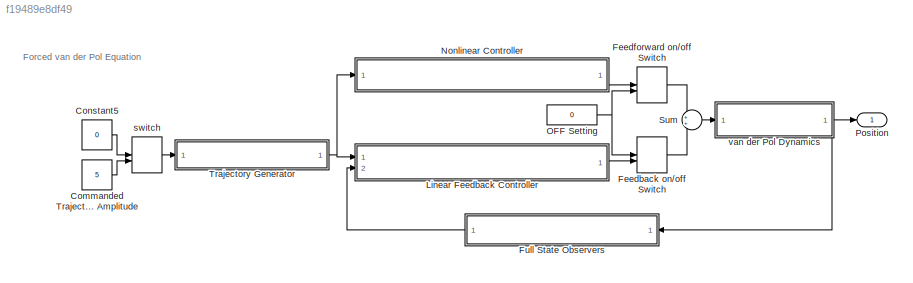
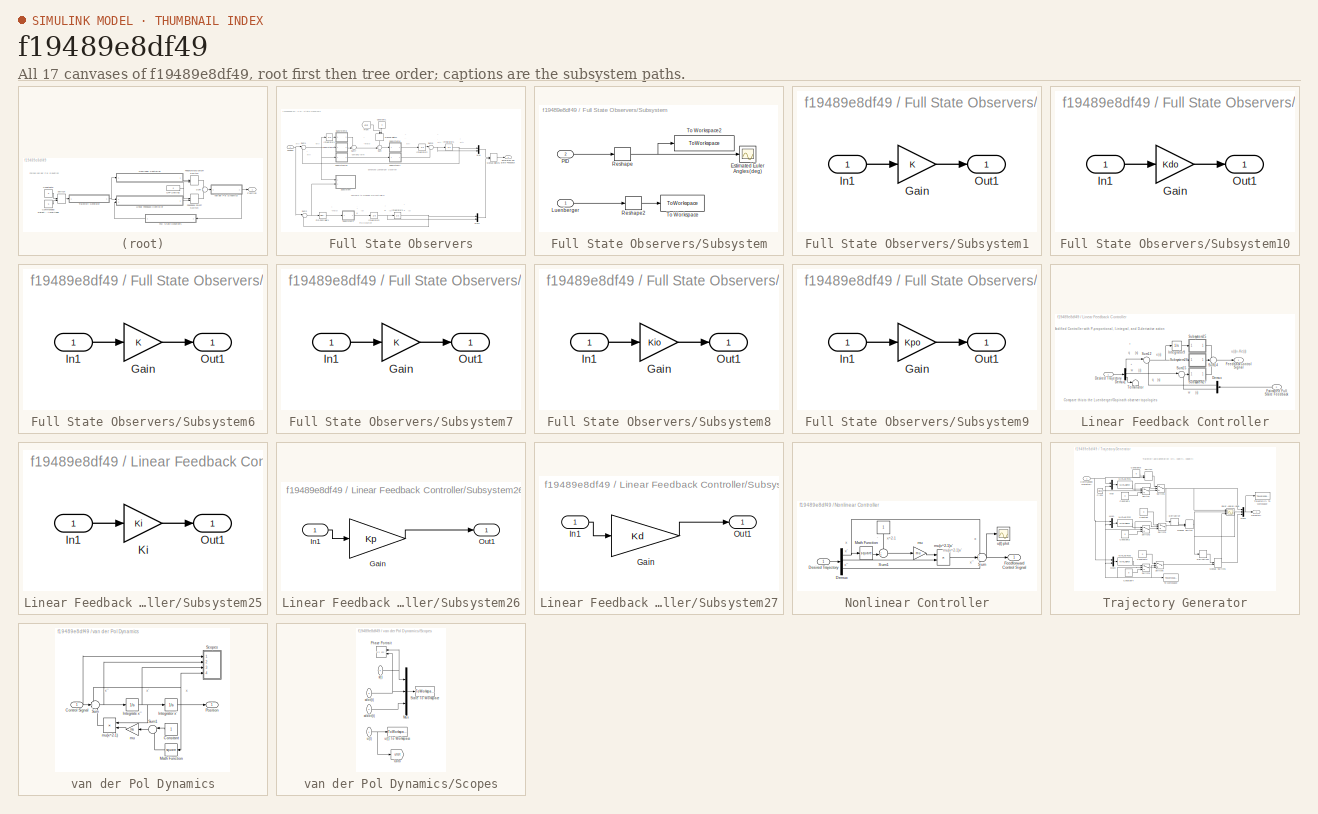
[diagram: thumbnail index - all 17 canvases of the model, root first then tree order]
MODEL slx_f19489e8df49
KIND model
CONFIG AbsTol = auto
CONFIG FixedStep = 0.01
CONFIG InitFcn = clear all; close all; clc;\nmu=1;\nx0=1;\nxdot0=0;\nStartTime=0;\nEndTime=26.7;\n\n% Design LQR for NO feedforward\nA=[1 -1;1 0]; B=[-1;0]; C=[0 1]; D=[0]; Q=[1 0;0 1];  R=[1]\n[K,S,E] = lqr(A,B,Q,R)\n\nKp=K(1);  Kd=K(2);  Ki=Kp*0.1;\nKpo=1;  Kdo=Kpo*1;  Kio=Kpo*0;
CONFIG MaxStep = auto
CONFIG MinStep = auto
CONFIG RelTol = 1e-3
CONFIG SampleTimeConstraint = Unconstrained
CONFIG Solver = ode4
CONFIG SolverMode = Auto
CONFIG SolverName = ode4
CONFIG StartTime = 0.0
CONFIG StopFcn = figure(1);\nsubplot(3,1,1); plot(t,Trajectory(:,1),'--r','linewidth',3); grid; ylabel('x(t)','fontsize',16); title('Position, Rate, Acceleration Trajectories','fontsize',16);   \nhold on; plot(t,State(:,1),'linewidth',2); hold off; legend('Desired', 'Actual');\nsubplot(3,1,2); plot(t,Trajectory(:,2),'--r','linewidth',3);  grid; ylabel('xdot(t)','fontsize',16);\nhold on; plot(t,State(:,2),'linewidth',2...<+1848ch>
CONFIG StopTime = 30
BLOCK [ManualSwitch]  switch
  CurrentSetting = 0
BLOCK [Constant] Commanded Trajectory Amplitude
  Value = 5
BLOCK [Constant] Constant5
  Value = 0
BLOCK [ManualSwitch] Feedback on//off Switch
  CurrentSetting = 0
BLOCK [ManualSwitch] Feedforward on//off Switch
  CurrentSetting = 0
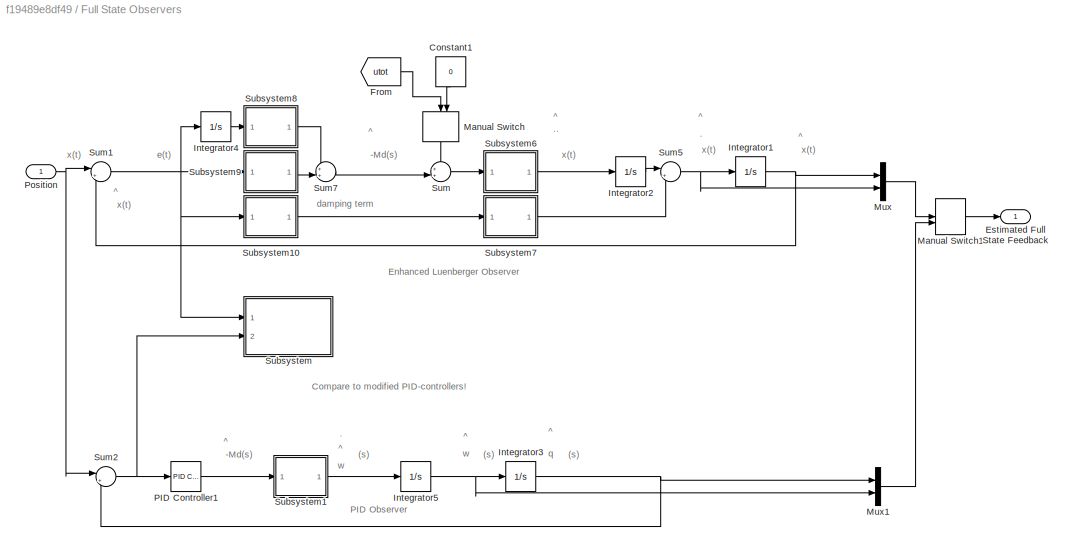
BLOCK [SubSystem] Full State Observers
  Ports = [1, 1]
  RequestExecContextInheritance = off
  Variant = off
BLOCK [Constant] Full State Observers/Constant1
  Value = 0
BLOCK [Outport] Full State Observers/Estimated Full State Feedback
  IconDisplay = Port number
BLOCK [From] Full State Observers/From
  GotoTag = utot
  TagVisibility = global
BLOCK [Integrator] Full State Observers/Integrator1
  Ports = [1, 1]
BLOCK [Integrator] Full State Observers/Integrator2
  Ports = [1, 1]
BLOCK [Integrator] Full State Observers/Integrator3
  Ports = [1, 1]
BLOCK [Integrator] Full State Observers/Integrator4
  Ports = [1, 1]
BLOCK [Integrator] Full State Observers/Integrator5
  Ports = [1, 1]
BLOCK [ManualSwitch] Full State Observers/Manual Switch
  CurrentSetting = 0
BLOCK [ManualSwitch] Full State Observers/Manual Switch1
BLOCK [Mux] Full State Observers/Mux
  DisplayOption = bar
  Inputs = 2
  Ports = [2, 1]
BLOCK [Mux] Full State Observers/Mux1
  DisplayOption = bar
  Inputs = 2
  Ports = [2, 1]
BLOCK [Reference] Full State Observers/PID Controller1  REF=simulink_need_slupdate/PID Controller
  Ports = [1, 1]
  SourceBlock = simulink_need_slupdate/PID Controller
  SourceType = PID Controller
BLOCK [Inport] Full State Observers/Position
  IconDisplay = Port number
BLOCK [SubSystem] Full State Observers/Subsystem
  Ports = [2]
  RequestExecContextInheritance = off
  Variant = off
BLOCK [Scope] Full State Observers/Subsystem/Estimated Euler Angles (deg)
  Ports = [1]
  ScopeSpecificationString = C++SS(StrPVP('Location','[263, 266, 767, 592]'),StrPVP('Open','off'),StrPVP('ZoomMode','xonly'),MxPVP('AxesTitles',24,'struct(''axes1'',''Euler Angles'')'),StrPVP('TimeRange','25'),StrPVP('YMax','35'),StrPVP('SaveName','ScopeData13'),StrPVP('DataFormat','StructureWithTime'),StrPVP('BlockParamSampleTime','0'),StrPVP('LimitDataPoints','on'),StrPVP('Decimation','1'),StrPVP('BlockParamSampleInput','of...<+4ch>
  StopFcn = %Simulink figure properties\nshh=get(0,'ShowHiddenHandles');\nset(0,'ShowHiddenHandles','On')\nset(gcf,'menubar','figure')\nset(gcf,'CloseRequestFcn','closereq')\nset(gcf,'DefaultLineClipping','Off')\nset(0,'ShowHiddenHandles',shh)
BLOCK [Inport] Full State Observers/Subsystem/Luenberger
  IconDisplay = Port number
BLOCK [Inport] Full State Observers/Subsystem/PID
  IconDisplay = Port number
  Port = 2
BLOCK [Reshape] Full State Observers/Subsystem/Reshape
  Ports = [1, 1]
BLOCK [Reshape] Full State Observers/Subsystem/Reshape2
  OutputDimensions = [1,9]
  Ports = [1, 1]
BLOCK [ToWorkspace] Full State Observers/Subsystem/To Workspace
  MaxDataPoints = inf
  Ports = [1]
  SampleTime = -1
  VariableName = LuenbergerEstimationError
BLOCK [ToWorkspace] Full State Observers/Subsystem/To Workspace2
  MaxDataPoints = inf
  Ports = [1]
  SampleTime = -1
  VariableName = PIDoEstimationError
BLOCK [SubSystem] Full State Observers/Subsystem1
  Ports = [1, 1]
  RequestExecContextInheritance = off
  Variant = off
BLOCK [Gain] Full State Observers/Subsystem1/Gain
  Multiplication = Matrix(K*u)
  OutDataTypeStr = Inherit: Inherit via internal rule
  ParamDataTypeStr = Inherit: Inherit via internal rule
  SaturateOnIntegerOverflow = off
BLOCK [Inport] Full State Observers/Subsystem1/In1
  IconDisplay = Port number
BLOCK [Outport] Full State Observers/Subsystem1/Out1
  IconDisplay = Port number
BLOCK [SubSystem] Full State Observers/Subsystem10
  Ports = [1, 1]
  RequestExecContextInheritance = off
  Variant = off
BLOCK [Gain] Full State Observers/Subsystem10/Gain
  Gain = Kdo
  OutDataTypeStr = Inherit: Inherit via internal rule
  ParamDataTypeStr = Inherit: Inherit via internal rule
  SaturateOnIntegerOverflow = off
BLOCK [Inport] Full State Observers/Subsystem10/In1
  IconDisplay = Port number
BLOCK [Outport] Full State Observers/Subsystem10/Out1
  IconDisplay = Port number
BLOCK [SubSystem] Full State Observers/Subsystem6
  Ports = [1, 1]
  RequestExecContextInheritance = off
  Variant = off
BLOCK [Gain] Full State Observers/Subsystem6/Gain
  Multiplication = Matrix(K*u)
  OutDataTypeStr = Inherit: Inherit via internal rule
  ParamDataTypeStr = Inherit: Inherit via internal rule
  SaturateOnIntegerOverflow = off
BLOCK [Inport] Full State Observers/Subsystem6/In1
  IconDisplay = Port number
BLOCK [Outport] Full State Observers/Subsystem6/Out1
  IconDisplay = Port number
BLOCK [SubSystem] Full State Observers/Subsystem7
  Ports = [1, 1]
  RequestExecContextInheritance = off
  Variant = off
BLOCK [Gain] Full State Observers/Subsystem7/Gain
  Multiplication = Matrix(K*u)
  OutDataTypeStr = Inherit: Inherit via internal rule
  ParamDataTypeStr = Inherit: Inherit via internal rule
  SaturateOnIntegerOverflow = off
BLOCK [Inport] Full State Observers/Subsystem7/In1
  IconDisplay = Port number
BLOCK [Outport] Full State Observers/Subsystem7/Out1
  IconDisplay = Port number
BLOCK [SubSystem] Full State Observers/Subsystem8
  Ports = [1, 1]
  RequestExecContextInheritance = off
  Variant = off
BLOCK [Gain] Full State Observers/Subsystem8/Gain
  Gain = Kio
  OutDataTypeStr = Inherit: Inherit via internal rule
  ParamDataTypeStr = Inherit: Inherit via internal rule
  SaturateOnIntegerOverflow = off
BLOCK [Inport] Full State Observers/Subsystem8/In1
  IconDisplay = Port number
BLOCK [Outport] Full State Observers/Subsystem8/Out1
  IconDisplay = Port number
BLOCK [SubSystem] Full State Observers/Subsystem9
  Ports = [1, 1]
  RequestExecContextInheritance = off
  Variant = off
BLOCK [Gain] Full State Observers/Subsystem9/Gain
  Gain = Kpo
  OutDataTypeStr = Inherit: Inherit via internal rule
  ParamDataTypeStr = Inherit: Inherit via internal rule
  SaturateOnIntegerOverflow = off
BLOCK [Inport] Full State Observers/Subsystem9/In1
  IconDisplay = Port number
BLOCK [Outport] Full State Observers/Subsystem9/Out1
  IconDisplay = Port number
BLOCK [Sum] Full State Observers/Sum
  IconShape = round
  InputSameDT = off
  Inputs = ++|
  OutDataTypeStr = Inherit: Inherit via internal rule
  Ports = [2, 1]
  SaturateOnIntegerOverflow = off
BLOCK [Sum] Full State Observers/Sum1
  IconShape = round
  InputSameDT = off
  Inputs = |+-
  OutDataTypeStr = Inherit: Inherit via internal rule
  Ports = [2, 1]
  SaturateOnIntegerOverflow = off
BLOCK [Sum] Full State Observers/Sum2
  IconShape = round
  InputSameDT = off
  Inputs = |+-
  OutDataTypeStr = Inherit: Inherit via internal rule
  Ports = [2, 1]
  SaturateOnIntegerOverflow = off
BLOCK [Sum] Full State Observers/Sum5
  IconShape = round
  InputSameDT = off
  Inputs = |++
  OutDataTypeStr = Inherit: Inherit via internal rule
  Ports = [2, 1]
  SaturateOnIntegerOverflow = off
BLOCK [Sum] Full State Observers/Sum7
  IconShape = round
  InputSameDT = off
  Inputs = ++|
  OutDataTypeStr = Inherit: Inherit via internal rule
  Ports = [2, 1]
  SaturateOnIntegerOverflow = off
BLOCK [SubSystem] Linear Feedback Controller
  Ports = [2, 1]
  RequestExecContextInheritance = off
  Variant = off
BLOCK [Demux] Linear Feedback Controller/Demux
  DisplayOption = bar
  Outputs = 2
  Ports = [1, 2]
BLOCK [Demux] Linear Feedback Controller/Demux1
  DisplayOption = bar
  Outputs = 3
  Ports = [1, 3]
BLOCK [Inport] Linear Feedback Controller/Desired Trajectory
  IconDisplay = Port number
BLOCK [Inport] Linear Feedback Controller/Estimated Full State Feedback
  IconDisplay = Port number
  Port = 2
BLOCK [Outport] Linear Feedback Controller/Feedback Control Signal
  IconDisplay = Port number
BLOCK [Integrator] Linear Feedback Controller/Integrator9
  Ports = [1, 1]
BLOCK [SubSystem] Linear Feedback Controller/Subsystem25
  Ports = [1, 1]
  RequestExecContextInheritance = off
  Variant = off
BLOCK [Inport] Linear Feedback Controller/Subsystem25/In1
  IconDisplay = Port number
BLOCK [Gain] Linear Feedback Controller/Subsystem25/Ki
  Gain = Ki
  OutDataTypeStr = Inherit: Inherit via internal rule
  ParamDataTypeStr = Inherit: Inherit via internal rule
  SaturateOnIntegerOverflow = off
BLOCK [Outport] Linear Feedback Controller/Subsystem25/Out1
  IconDisplay = Port number
BLOCK [SubSystem] Linear Feedback Controller/Subsystem26
  Ports = [1, 1]
  RequestExecContextInheritance = off
  Variant = off
BLOCK [Gain] Linear Feedback Controller/Subsystem26/Gain
  Gain = Kp
  OutDataTypeStr = Inherit: Inherit via internal rule
  ParamDataTypeStr = Inherit: Inherit via internal rule
  SaturateOnIntegerOverflow = off
BLOCK [Inport] Linear Feedback Controller/Subsystem26/In1
  IconDisplay = Port number
BLOCK [Outport] Linear Feedback Controller/Subsystem26/Out1
  IconDisplay = Port number
BLOCK [SubSystem] Linear Feedback Controller/Subsystem27
  Ports = [1, 1]
  RequestExecContextInheritance = off
  Variant = off
BLOCK [Gain] Linear Feedback Controller/Subsystem27/Gain
  Gain = Kd
  OutDataTypeStr = Inherit: Inherit via internal rule
  ParamDataTypeStr = Inherit: Inherit via internal rule
  SaturateOnIntegerOverflow = off
BLOCK [Inport] Linear Feedback Controller/Subsystem27/In1
  IconDisplay = Port number
BLOCK [Outport] Linear Feedback Controller/Subsystem27/Out1
  IconDisplay = Port number
BLOCK [Sum] Linear Feedback Controller/Sum12
  IconShape = round
  InputSameDT = off
  Inputs = |+-
  OutDataTypeStr = Inherit: Inherit via internal rule
  Ports = [2, 1]
  SaturateOnIntegerOverflow = off
BLOCK [Sum] Linear Feedback Controller/Sum14
  IconShape = round
  InputSameDT = off
  Inputs = ---
  OutDataTypeStr = Inherit: Inherit via internal rule
  Ports = [3, 1]
  SaturateOnIntegerOverflow = off
BLOCK [Sum] Linear Feedback Controller/Sum15
  IconShape = round
  InputSameDT = off
  Inputs = |+-
  OutDataTypeStr = Inherit: Inherit via internal rule
  Ports = [2, 1]
  SaturateOnIntegerOverflow = off
BLOCK [Terminator] Linear Feedback Controller/Terminator
BLOCK [SubSystem] Nonlinear Controller
  Ports = [1, 1]
  RequestExecContextInheritance = off
  Variant = off
BLOCK [Constant] Nonlinear Controller/.
BLOCK [Demux] Nonlinear Controller/Demux
  DisplayOption = bar
  Outputs = 3
  Ports = [1, 3]
BLOCK [Inport] Nonlinear Controller/Desired Trajectory
  IconDisplay = Port number
BLOCK [Outport] Nonlinear Controller/Feedforward Control Signal
  IconDisplay = Port number
BLOCK [Math] Nonlinear Controller/Math Function
  Operator = square
  Ports = [1, 1]
BLOCK [Sum] Nonlinear Controller/Sum
  IconShape = round
  InputSameDT = off
  Inputs = +++
  OutDataTypeStr = Inherit: Inherit via internal rule
  Ports = [3, 1]
  SaturateOnIntegerOverflow = off
BLOCK [Sum] Nonlinear Controller/Sum1
  IconShape = round
  InputSameDT = off
  Inputs = -+|
  OutDataTypeStr = Inherit: Inherit via internal rule
  Ports = [2, 1]
  SaturateOnIntegerOverflow = off
BLOCK [Gain] Nonlinear Controller/mu
  Gain = mu
  OutDataTypeStr = Inherit: Inherit via internal rule
  ParamDataTypeStr = Inherit: Inherit via internal rule
  SaturateOnIntegerOverflow = off
BLOCK [Product] Nonlinear Controller/mu(x^2-1)x'
  InputSameDT = off
  OutDataTypeStr = Inherit: Inherit via internal rule
  Ports = [2, 1]
  RndMeth = Floor
  SaturateOnIntegerOverflow = off
BLOCK [Scope] Nonlinear Controller/u(t) plot
  Ports = [1]
  ScopeSpecificationString = Simulink.scopes.TimeScopeBlockCfg('CurrentConfiguration', extmgr.ConfigurationSet(extmgr.Configuration('Core','General UI',true),extmgr.Configuration('Core','Source UI',true),extmgr.Configuration('Sources','WiredSimulink',true,'DataLoggingVariableName','ScopeData1','DataLoggingSaveFormat','StructureWithTime','DataLoggingLimitDataPoints',true,'DataLoggingDecimation','1','DataLoggingDecimateData',tr...<+1700ch>
BLOCK [Constant] OFF Setting
  Value = 0
BLOCK [Outport] Position
  IconDisplay = Port number
BLOCK [Sum] Sum
  IconShape = round
  InputSameDT = off
  OutDataTypeStr = Inherit: Inherit via internal rule
  Ports = [2, 1]
  SaturateOnIntegerOverflow = off
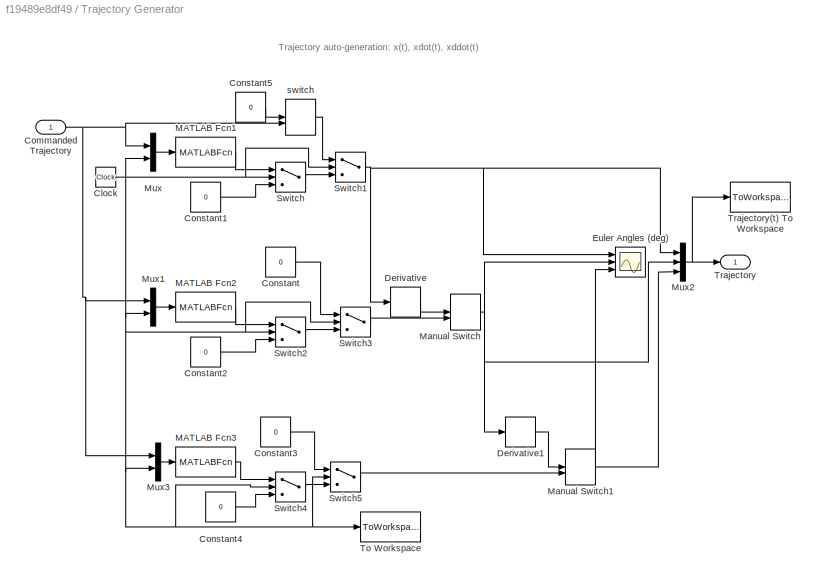
BLOCK [SubSystem] Trajectory Generator
  Ports = [1, 1]
  RequestExecContextInheritance = off
  Variant = off
BLOCK [ManualSwitch] Trajectory Generator/ switch
  CurrentSetting = 0
BLOCK [Clock] Trajectory Generator/Clock
BLOCK [Inport] Trajectory Generator/Commanded Trajectory
  IconDisplay = Port number
BLOCK [Constant] Trajectory Generator/Constant
  Value = 0
BLOCK [Constant] Trajectory Generator/Constant1
  Value = 0
BLOCK [Constant] Trajectory Generator/Constant2
  Value = 0
BLOCK [Constant] Trajectory Generator/Constant3
  Value = 0
BLOCK [Constant] Trajectory Generator/Constant4
  Value = 0
BLOCK [Constant] Trajectory Generator/Constant5
  Value = 0
BLOCK [Derivative] Trajectory Generator/Derivative
BLOCK [Derivative] Trajectory Generator/Derivative1
BLOCK [Scope] Trajectory Generator/Euler Angles (deg)
  NumInputPorts = 3
  Ports = [3]
  ScopeSpecificationString = C++SS(StrPVP('Location','[901, 205, 1435, 842]'),StrPVP('Open','off'),StrPVP('ZoomMode','xonly'),MxPVP('AxesTitles',24,'struct(''axes1'',''COMMANDED TRAJECTORY'',''axes2'',''%<SignalLabel>'',''axes3'',''%<SignalLabel>'')'),MxPVP('ScopeGraphics',28,'struct(''FigureColor'',''[0.5 0.5 0.5]'',''AxesColor'',''[0 0 0]'',''AxesTickColor'',''[1 1 1]'',''LineColors'',''[1 1 0;1 0 1;0 1 1;1 0 0;0 1 0;0 0 1]...<+409ch>
  StopFcn = %Simulink figure properties\nshh=get(0,'ShowHiddenHandles');\nset(0,'ShowHiddenHandles','On')\nset(gcf,'menubar','figure')\nset(gcf,'CloseRequestFcn','closereq')\nset(gcf,'DefaultLineClipping','Off')\nset(0,'ShowHiddenHandles',shh)
BLOCK [MATLABFcn] Trajectory Generator/MATLAB Fcn1
  MATLABFcn = u(1) * sin( u(2) )
  Ports = [1, 1]
BLOCK [MATLABFcn] Trajectory Generator/MATLAB Fcn2
  MATLABFcn = u(1) * cos( u(2) )
  Ports = [1, 1]
BLOCK [MATLABFcn] Trajectory Generator/MATLAB Fcn3
  MATLABFcn = -u(1) * sin( u(2) )
  Ports = [1, 1]
BLOCK [ManualSwitch] Trajectory Generator/Manual Switch
  CurrentSetting = 0
BLOCK [ManualSwitch] Trajectory Generator/Manual Switch1
  CurrentSetting = 0
BLOCK [Mux] Trajectory Generator/Mux
  DisplayOption = bar
  Inputs = 2
  Ports = [2, 1]
BLOCK [Mux] Trajectory Generator/Mux1
  DisplayOption = bar
  Inputs = 2
  Ports = [2, 1]
BLOCK [Mux] Trajectory Generator/Mux2
  DisplayOption = bar
  Inputs = 3
  Ports = [3, 1]
BLOCK [Mux] Trajectory Generator/Mux3
  DisplayOption = bar
  Inputs = 2
  Ports = [2, 1]
BLOCK [Switch] Trajectory Generator/Switch
  InputSameDT = off
  SaturateOnIntegerOverflow = off
  Threshold = StartTime
BLOCK [Switch] Trajectory Generator/Switch1
  InputSameDT = off
  SaturateOnIntegerOverflow = off
  Threshold = EndTime
BLOCK [Switch] Trajectory Generator/Switch2
  InputSameDT = off
  SaturateOnIntegerOverflow = off
  Threshold = StartTime
BLOCK [Switch] Trajectory Generator/Switch3
  InputSameDT = off
  SaturateOnIntegerOverflow = off
  Threshold = EndTime
BLOCK [Switch] Trajectory Generator/Switch4
  InputSameDT = off
  SaturateOnIntegerOverflow = off
  Threshold = StartTime
BLOCK [Switch] Trajectory Generator/Switch5
  InputSameDT = off
  SaturateOnIntegerOverflow = off
  Threshold = EndTime
BLOCK [ToWorkspace] Trajectory Generator/To Workspace
  MaxDataPoints = inf
  Ports = [1]
  SampleTime = -1
  VariableName = t
BLOCK [Outport] Trajectory Generator/Trajectory
  IconDisplay = Port number
BLOCK [ToWorkspace] Trajectory Generator/Trajectory(t) To Workspace
  MaxDataPoints = inf
  Ports = [1]
  SampleTime = -1
  VariableName = Trajectory
BLOCK [SubSystem] van der Pol Dynamics
  Ports = [1, 1]
  RequestExecContextInheritance = off
  Variant = off
BLOCK [Constant] van der Pol Dynamics/Constant
BLOCK [Inport] van der Pol Dynamics/Control Signal
  IconDisplay = Port number
BLOCK [Integrator] van der Pol Dynamics/Integrate x''
  InitialCondition = xdot0
  Ports = [1, 1]
BLOCK [Integrator] van der Pol Dynamics/Integrator x'
  InitialCondition = x0
  Ports = [1, 1]
BLOCK [Math] van der Pol Dynamics/Math Function
  Operator = square
  Ports = [1, 1]
BLOCK [Outport] van der Pol Dynamics/Position
  IconDisplay = Port number
BLOCK [SubSystem] van der Pol Dynamics/Scopes
  Ports = [4]
  RequestExecContextInheritance = off
  Variant = off
BLOCK [Goto] van der Pol Dynamics/Scopes/Goto
  GotoTag = utot
  TagVisibility = global
BLOCK [Mux] van der Pol Dynamics/Scopes/Mux
  DisplayOption = bar
  Inputs = 3
  Ports = [3, 1]
BLOCK [Reference] van der Pol Dynamics/Scopes/Phase Portrait  REF=simulink/Sinks/XY Graph
  Ports = [2]
  SourceBlock = simulink/Sinks/XY Graph
  SourceType = XY scope.
BLOCK [ToWorkspace] van der Pol Dynamics/Scopes/State To Workspace
  MaxDataPoints = inf
  Ports = [1]
  SampleTime = -1
  VariableName = State
BLOCK [Inport] van der Pol Dynamics/Scopes/u(t)
  IconDisplay = Port number
BLOCK [ToWorkspace] van der Pol Dynamics/Scopes/u(t) To Workspace
  MaxDataPoints = inf
  Ports = [1]
  SampleTime = -1
  VariableName = u
BLOCK [Inport] van der Pol Dynamics/Scopes/x(t)
  IconDisplay = Port number
  Port = 4
BLOCK [Inport] van der Pol Dynamics/Scopes/xddot(t)
  IconDisplay = Port number
  Port = 2
BLOCK [Inport] van der Pol Dynamics/Scopes/xdot(t)
  IconDisplay = Port number
  Port = 3
BLOCK [Sum] van der Pol Dynamics/Sum
  IconShape = round
  InputSameDT = off
  Inputs = -+-
  OutDataTypeStr = Inherit: Inherit via internal rule
  Ports = [3, 1]
  SaturateOnIntegerOverflow = off
BLOCK [Sum] van der Pol Dynamics/Sum1
  IconShape = round
  InputSameDT = off
  Inputs = |-+
  OutDataTypeStr = Inherit: Inherit via internal rule
  Ports = [2, 1]
  SaturateOnIntegerOverflow = off
BLOCK [Gain] van der Pol Dynamics/mu
  Gain = mu
  OutDataTypeStr = Inherit: Inherit via internal rule
  ParamDataTypeStr = Inherit: Inherit via internal rule
  SaturateOnIntegerOverflow = off
BLOCK [Product] van der Pol Dynamics/mu(x^2-1)
  InputSameDT = off
  OutDataTypeStr = Inherit: Inherit via internal rule
  Ports = [2, 1]
  RndMeth = Floor
  SaturateOnIntegerOverflow = off
ANNOTATION (root): Forced van der Pol Equation
ANNOTATION Full State Observers: (s)
ANNOTATION Full State Observers: -Md(s)
ANNOTATION Full State Observers: .
ANNOTATION Full State Observers: ..
ANNOTATION Full State Observers: Compare to modified PID-controllers!
ANNOTATION Full State Observers: Enhanced Luenberger Observer
ANNOTATION Full State Observers: PID Observer
ANNOTATION Full State Observers: ^
ANNOTATION Full State Observers: damping term
ANNOTATION Full State Observers: e(t)
ANNOTATION Full State Observers: q
ANNOTATION Full State Observers: w
ANNOTATION Full State Observers: x(t)
ANNOTATION Linear Feedback Controller: (s)
ANNOTATION Linear Feedback Controller: *
ANNOTATION Linear Feedback Controller: Compare this to the Luenberger/Gopinath observer topologies
ANNOTATION Linear Feedback Controller: Modified Controller with P-proportional, I-integral, and D-derivative action
ANNOTATION Linear Feedback Controller: e(s)
ANNOTATION Linear Feedback Controller: q
ANNOTATION Linear Feedback Controller: u(s)=-Ke(s)
ANNOTATION Linear Feedback Controller: w
ANNOTATION Nonlinear Controller: mu(x^2-1)x'
ANNOTATION Nonlinear Controller: x
ANNOTATION Nonlinear Controller: x'
ANNOTATION Nonlinear Controller: x''
ANNOTATION Nonlinear Controller: x^2-1
ANNOTATION Trajectory Generator: Trajectory auto-generation: x(t), xdot(t), xddot(t)
ANNOTATION van der Pol Dynamics: x
ANNOTATION van der Pol Dynamics: x'
ANNOTATION van der Pol Dynamics: x''
LINE  switch:1 -> Trajectory Generator:1
LINE Commanded Trajectory Amplitude:1 ->  switch:2
LINE Constant5:1 ->  switch:1
LINE Feedback on//off Switch:1 -> Sum:2
LINE Feedforward on//off Switch:1 -> Sum:1
LINE Full State Observers/Constant1:1 -> Full State Observers/Manual Switch:2
LINE Full State Observers/From:1 -> Full State Observers/Manual Switch:1
NET Full State Observers/Integrator1:1 -> Full State Observers/Mux:1, Full State Observers/Sum1:2
LINE Full State Observers/Integrator2:1 -> Full State Observers/Sum5:1
NET Full State Observers/Integrator3:1 -> Full State Observers/Mux1:1, Full State Observers/Sum2:2
LINE Full State Observers/Integrator4:1 -> Full State Observers/Subsystem8:1
NET Full State Observers/Integrator5:1 -> Full State Observers/Integrator3:1, Full State Observers/Mux1:2
LINE Full State Observers/Manual Switch1:1 -> Full State Observers/Estimated Full State Feedback:1
LINE Full State Observers/Manual Switch:1 -> Full State Observers/Sum:1
LINE Full State Observers/Mux1:1 -> Full State Observers/Manual Switch1:2
LINE Full State Observers/Mux:1 -> Full State Observers/Manual Switch1:1
LINE Full State Observers/PID Controller1:1 -> Full State Observers/Subsystem1:1
NET Full State Observers/Position:1 -> Full State Observers/Sum1:1, Full State Observers/Sum2:1
LINE Full State Observers/Subsystem/Luenberger:1 -> Full State Observers/Subsystem/Reshape2:1
LINE Full State Observers/Subsystem/PID:1 -> Full State Observers/Subsystem/Reshape:1
LINE Full State Observers/Subsystem/Reshape2:1 -> Full State Observers/Subsystem/To Workspace:1
NET Full State Observers/Subsystem/Reshape:1 -> Full State Observers/Subsystem/Estimated Euler Angles (deg):1, Full State Observers/Subsystem/To Workspace2:1
LINE Full State Observers/Subsystem1/Gain:1 -> Full State Observers/Subsystem1/Out1:1
LINE Full State Observers/Subsystem1/In1:1 -> Full State Observers/Subsystem1/Gain:1
LINE Full State Observers/Subsystem10/Gain:1 -> Full State Observers/Subsystem10/Out1:1
LINE Full State Observers/Subsystem10/In1:1 -> Full State Observers/Subsystem10/Gain:1
LINE Full State Observers/Subsystem10:1 -> Full State Observers/Subsystem7:1
LINE Full State Observers/Subsystem1:1 -> Full State Observers/Integrator5:1
LINE Full State Observers/Subsystem6/Gain:1 -> Full State Observers/Subsystem6/Out1:1
LINE Full State Observers/Subsystem6/In1:1 -> Full State Observers/Subsystem6/Gain:1
LINE Full State Observers/Subsystem6:1 -> Full State Observers/Integrator2:1
LINE Full State Observers/Subsystem7/Gain:1 -> Full State Observers/Subsystem7/Out1:1
LINE Full State Observers/Subsystem7/In1:1 -> Full State Observers/Subsystem7/Gain:1
LINE Full State Observers/Subsystem7:1 -> Full State Observers/Sum5:2
LINE Full State Observers/Subsystem8/Gain:1 -> Full State Observers/Subsystem8/Out1:1
LINE Full State Observers/Subsystem8/In1:1 -> Full State Observers/Subsystem8/Gain:1
LINE Full State Observers/Subsystem8:1 -> Full State Observers/Sum7:1
LINE Full State Observers/Subsystem9/Gain:1 -> Full State Observers/Subsystem9/Out1:1
LINE Full State Observers/Subsystem9/In1:1 -> Full State Observers/Subsystem9/Gain:1
LINE Full State Observers/Subsystem9:1 -> Full State Observers/Sum7:2
NET Full State Observers/Sum1:1 -> Full State Observers/Integrator4:1, Full State Observers/Subsystem10:1, Full State Observers/Subsystem9:1, Full State Observers/Subsystem:1
NET Full State Observers/Sum2:1 -> Full State Observers/PID Controller1:1, Full State Observers/Subsystem:2
NET Full State Observers/Sum5:1 -> Full State Observers/Integrator1:1, Full State Observers/Mux:2
LINE Full State Observers/Sum7:1 -> Full State Observers/Sum:2
LINE Full State Observers/Sum:1 -> Full State Observers/Subsystem6:1
LINE Full State Observers:1 -> Linear Feedback Controller:2
LINE Linear Feedback Controller/Demux1:1 -> Linear Feedback Controller/Sum12:1
LINE Linear Feedback Controller/Demux1:2 -> Linear Feedback Controller/Sum15:1
LINE Linear Feedback Controller/Demux1:3 -> Linear Feedback Controller/Terminator:1
LINE Linear Feedback Controller/Demux:1 -> Linear Feedback Controller/Sum12:2
LINE Linear Feedback Controller/Demux:2 -> Linear Feedback Controller/Sum15:2
LINE Linear Feedback Controller/Desired Trajectory:1 -> Linear Feedback Controller/Demux1:1
LINE Linear Feedback Controller/Estimated Full State Feedback:1 -> Linear Feedback Controller/Demux:1
LINE Linear Feedback Controller/Integrator9:1 -> Linear Feedback Controller/Subsystem25:1
LINE Linear Feedback Controller/Subsystem25/In1:1 -> Linear Feedback Controller/Subsystem25/Ki:1
LINE Linear Feedback Controller/Subsystem25/Ki:1 -> Linear Feedback Controller/Subsystem25/Out1:1
LINE Linear Feedback Controller/Subsystem25:1 -> Linear Feedback Controller/Sum14:1
LINE Linear Feedback Controller/Subsystem26/Gain:1 -> Linear Feedback Controller/Subsystem26/Out1:1
LINE Linear Feedback Controller/Subsystem26/In1:1 -> Linear Feedback Controller/Subsystem26/Gain:1
LINE Linear Feedback Controller/Subsystem26:1 -> Linear Feedback Controller/Sum14:2
LINE Linear Feedback Controller/Subsystem27/Gain:1 -> Linear Feedback Controller/Subsystem27/Out1:1
LINE Linear Feedback Controller/Subsystem27/In1:1 -> Linear Feedback Controller/Subsystem27/Gain:1
LINE Linear Feedback Controller/Subsystem27:1 -> Linear Feedback Controller/Sum14:3
NET Linear Feedback Controller/Sum12:1 -> Linear Feedback Controller/Integrator9:1, Linear Feedback Controller/Subsystem26:1
LINE Linear Feedback Controller/Sum14:1 -> Linear Feedback Controller/Feedback Control Signal:1
LINE Linear Feedback Controller/Sum15:1 -> Linear Feedback Controller/Subsystem27:1
LINE Linear Feedback Controller:1 -> Feedback on//off Switch:2
LINE Nonlinear Controller/.:1 -> Nonlinear Controller/Sum1:1
NET Nonlinear Controller/Demux:1 -> Nonlinear Controller/Math Function:1, Nonlinear Controller/Sum:1
LINE Nonlinear Controller/Demux:2 -> Nonlinear Controller/mu(x^2-1)x':2
LINE Nonlinear Controller/Demux:3 -> Nonlinear Controller/Sum:3
LINE Nonlinear Controller/Desired Trajectory:1 -> Nonlinear Controller/Demux:1
LINE Nonlinear Controller/Math Function:1 -> Nonlinear Controller/Sum1:2
LINE Nonlinear Controller/Sum1:1 -> Nonlinear Controller/mu:1
NET Nonlinear Controller/Sum:1 -> Nonlinear Controller/Feedforward Control Signal:1, Nonlinear Controller/u(t) plot:1
LINE Nonlinear Controller/mu(x^2-1)x':1 -> Nonlinear Controller/Sum:2
LINE Nonlinear Controller/mu:1 -> Nonlinear Controller/mu(x^2-1)x':1
LINE Nonlinear Controller:1 -> Feedforward on//off Switch:1
NET OFF Setting:1 -> Feedback on//off Switch:1, Feedforward on//off Switch:2
LINE Sum:1 -> van der Pol Dynamics:1
LINE Trajectory Generator/ switch:1 -> Trajectory Generator/Switch1:1
NET Trajectory Generator/Clock:1 -> Trajectory Generator/Mux1:2, Trajectory Generator/Mux3:2, Trajectory Generator/Mux:2, Trajectory Generator/Switch1:2, Trajectory Generator/Switch2:2, Trajectory Generator/Switch3:2, Trajectory Generator/Switch4:2, Trajectory Generator/Switch5:2, Trajectory Generator/Switch:2, Trajectory Generator/To Workspace:1
NET Trajectory Generator/Commanded Trajectory:1 -> Trajectory Generator/ switch:2, Trajectory Generator/Mux1:1, Trajectory Generator/Mux3:1, Trajectory Generator/Mux:1
LINE Trajectory Generator/Constant1:1 -> Trajectory Generator/Switch:3
LINE Trajectory Generator/Constant2:1 -> Trajectory Generator/Switch2:3
LINE Trajectory Generator/Constant3:1 -> Trajectory Generator/Switch5:1
LINE Trajectory Generator/Constant4:1 -> Trajectory Generator/Switch4:3
LINE Trajectory Generator/Constant5:1 -> Trajectory Generator/ switch:1
LINE Trajectory Generator/Constant:1 -> Trajectory Generator/Switch3:1
LINE Trajectory Generator/Derivative1:1 -> Trajectory Generator/Manual Switch1:1
LINE Trajectory Generator/Derivative:1 -> Trajectory Generator/Manual Switch:1
LINE Trajectory Generator/MATLAB Fcn1:1 -> Trajectory Generator/Switch:1
LINE Trajectory Generator/MATLAB Fcn2:1 -> Trajectory Generator/Switch2:1
LINE Trajectory Generator/MATLAB Fcn3:1 -> Trajectory Generator/Switch4:1
NET Trajectory Generator/Manual Switch1:1 -> Trajectory Generator/Euler Angles (deg):3, Trajectory Generator/Mux2:3
NET Trajectory Generator/Manual Switch:1 -> Trajectory Generator/Derivative1:1, Trajectory Generator/Euler Angles (deg):2, Trajectory Generator/Mux2:2
LINE Trajectory Generator/Mux1:1 -> Trajectory Generator/MATLAB Fcn2:1
NET Trajectory Generator/Mux2:1 -> Trajectory Generator/Trajectory(t) To Workspace:1, Trajectory Generator/Trajectory:1
LINE Trajectory Generator/Mux3:1 -> Trajectory Generator/MATLAB Fcn3:1
LINE Trajectory Generator/Mux:1 -> Trajectory Generator/MATLAB Fcn1:1
NET Trajectory Generator/Switch1:1 -> Trajectory Generator/Derivative:1, Trajectory Generator/Euler Angles (deg):1, Trajectory Generator/Mux2:1
LINE Trajectory Generator/Switch2:1 -> Trajectory Generator/Switch3:3
LINE Trajectory Generator/Switch3:1 -> Trajectory Generator/Manual Switch:2
LINE Trajectory Generator/Switch4:1 -> Trajectory Generator/Switch5:3
LINE Trajectory Generator/Switch5:1 -> Trajectory Generator/Manual Switch1:2
LINE Trajectory Generator/Switch:1 -> Trajectory Generator/Switch1:3
NET Trajectory Generator:1 -> Linear Feedback Controller:1, Nonlinear Controller:1
LINE van der Pol Dynamics/Constant:1 -> van der Pol Dynamics/Sum1:1
NET van der Pol Dynamics/Control Signal:1 -> van der Pol Dynamics/Scopes:1, van der Pol Dynamics/Sum:2
NET van der Pol Dynamics/Integrate x'':1 -> van der Pol Dynamics/Integrator x':1, van der Pol Dynamics/Scopes:3, van der Pol Dynamics/mu(x^2-1):1
NET van der Pol Dynamics/Integrator x':1 -> van der Pol Dynamics/Math Function:1, van der Pol Dynamics/Position:1, van der Pol Dynamics/Scopes:4, van der Pol Dynamics/Sum:1
LINE van der Pol Dynamics/Math Function:1 -> van der Pol Dynamics/Sum1:2
LINE van der Pol Dynamics/Scopes/Mux:1 -> van der Pol Dynamics/Scopes/State To Workspace:1
NET van der Pol Dynamics/Scopes/u(t):1 -> van der Pol Dynamics/Scopes/Goto:1, van der Pol Dynamics/Scopes/u(t) To Workspace:1
NET van der Pol Dynamics/Scopes/x(t):1 -> van der Pol Dynamics/Scopes/Mux:1, van der Pol Dynamics/Scopes/Phase Portrait:1
LINE van der Pol Dynamics/Scopes/xddot(t):1 -> van der Pol Dynamics/Scopes/Mux:3
NET van der Pol Dynamics/Scopes/xdot(t):1 -> van der Pol Dynamics/Scopes/Mux:2, van der Pol Dynamics/Scopes/Phase Portrait:2
LINE van der Pol Dynamics/Sum1:1 -> van der Pol Dynamics/mu:1
NET van der Pol Dynamics/Sum:1 -> van der Pol Dynamics/Integrate x'':1, van der Pol Dynamics/Scopes:2
LINE van der Pol Dynamics/mu(x^2-1):1 -> van der Pol Dynamics/Sum:3
LINE van der Pol Dynamics/mu:1 -> van der Pol Dynamics/mu(x^2-1):2
NET van der Pol Dynamics:1 -> Full State Observers:1, Position:1
note: NET lines group one-source signal fan-out (src -> all destinations, sorted); 1:1 wires keep LINE
